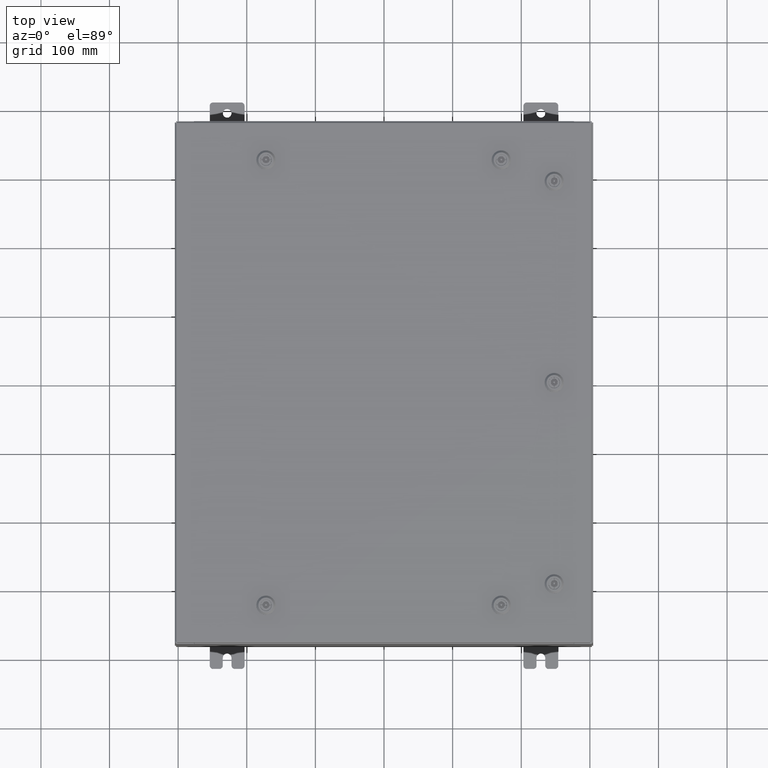
[diagram: clean part render]
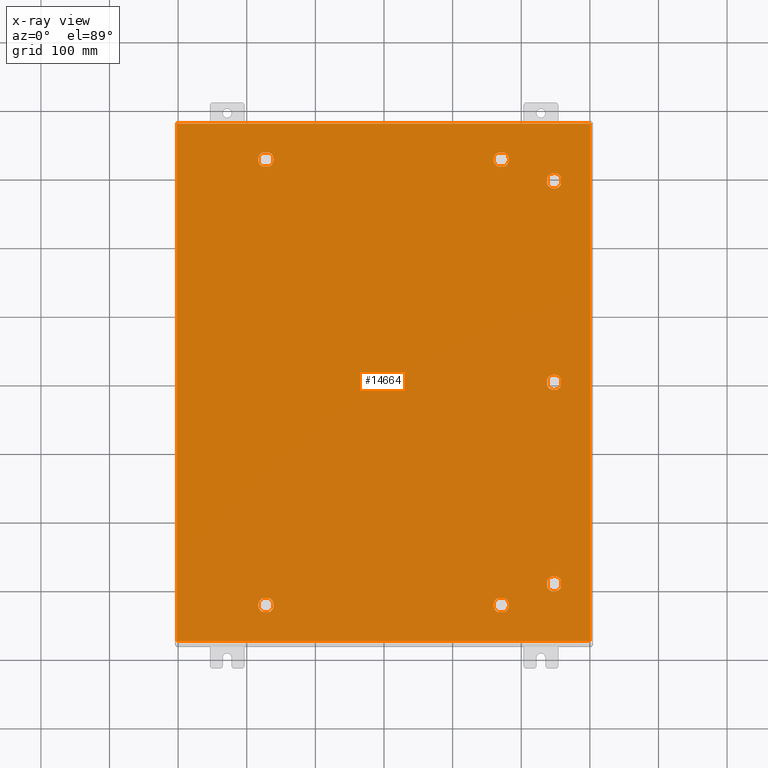
[diagram: x-ray — body ghosted, one internal face saturated and labeled with its STEP entity id]
A machine part, top view, then the same camera in x-ray: the body is ghosted and one INTERNAL B-rep face — a face not visible from any outside direction — is saturated and labeled: STEP entity #14664.
In plain terms, the highlighted planar face has unit normal (0, 0, -1).
Its self-contained STEP definition (entity closure, byte-faithful):
#152 = CIRCLE ( 'NONE', #1400, 0.4424999999999972800 ) ;
#252 = DIRECTION ( 'NONE',  ( -1.000000000000000000, 8.881784197001274000E-016, 0.0000000000000000000 ) ) ;
#368 = DIRECTION ( 'NONE',  ( -1.000000000000000000, 0.0000000000000000000, 0.0000000000000000000 ) ) ;
#466 = DIRECTION ( 'NONE',  ( -1.000000000000000000, 5.478697338139250800E-015, 0.0000000000000000000 ) ) ;
#712 = CARTESIAN_POINT ( 'NONE',  ( 9.392800000000015400, 0.1994523752679053800, -0.07470000000000003000 ) ) ;
#793 = VERTEX_POINT ( 'NONE', #23833 ) ;
#808 = VERTEX_POINT ( 'NONE', #3298 ) ;
#905 = VERTEX_POINT ( 'NONE', #17414 ) ;
#940 = VERTEX_POINT ( 'NONE', #14763 ) ;
#1184 = VECTOR ( 'NONE', #53418, 39.37007874015748100 ) ;
#1240 = EDGE_CURVE ( 'NONE', #21196, #11850, #36324, .T. ) ;
#1400 = AXIS2_PLACEMENT_3D ( 'NONE', #44839, #15274, #49804 ) ;
#1429 = VECTOR ( 'NONE', #466, 39.37007874015748100 ) ;
#1481 = EDGE_CURVE ( 'NONE', #808, #13342, #18571, .T. ) ;
#1514 = EDGE_CURVE ( 'NONE', #21528, #808, #40183, .T. ) ;
#1547 = LINE ( 'NONE', #13909, #41072 ) ;
#1581 = DIRECTION ( 'NONE',  ( -1.000000000000000000, 0.0000000000000000000, 0.0000000000000000000 ) ) ;
#1591 = ORIENTED_EDGE ( 'NONE', *, *, #31052, .T. ) ;
#1689 = DIRECTION ( 'NONE',  ( -1.000000000000000000, 2.664535259100377700E-015, 0.0000000000000000000 ) ) ;
#1739 = EDGE_CURVE ( 'NONE', #26113, #12554, #61850, .T. ) ;
#1940 = CARTESIAN_POINT ( 'NONE',  ( -6.550547624732101500, -12.39280000000000300, -0.07470000000000003000 ) ) ;
#2157 = CIRCLE ( 'NONE', #56658, 0.4424999999999972800 ) ;
#2561 = VERTEX_POINT ( 'NONE', #3694 ) ;
#2570 = CARTESIAN_POINT ( 'NONE',  ( -6.307499999999988600, -12.78779999999999900, -0.07470000000000003000 ) ) ;
#3216 = LINE ( 'NONE', #48623, #54295 ) ;
#3298 = CARTESIAN_POINT ( 'NONE',  ( -11.84980000000000000, 14.84980000000000200, -0.07470000000000000300 ) ) ;
#3370 = EDGE_CURVE ( 'NONE', #12554, #8052, #38243, .T. ) ;
#3447 = LINE ( 'NONE', #27107, #15144 ) ;
#3535 = FACE_BOUND ( 'NONE', #20921, .T. ) ;
#3587 = ORIENTED_EDGE ( 'NONE', *, *, #28927, .T. ) ;
#3694 = CARTESIAN_POINT ( 'NONE',  ( -6.307499999999987700, 12.78779999999999400, -0.07470000000000003000 ) ) ;
#3756 = CARTESIAN_POINT ( 'NONE',  ( 6.550547624732099700, 12.39280000000000100, -0.07470000000000003000 ) ) ;
#3766 = CARTESIAN_POINT ( 'NONE',  ( 10.18280000000000600, 0.1994523752679009100, -0.07470000000000000300 ) ) ;
#3865 = DIRECTION ( 'NONE',  ( -0.0000000000000000000, -0.0000000000000000000, 1.000000000000000000 ) ) ;
#3946 = AXIS2_PLACEMENT_3D ( 'NONE', #59601, #29989, #252 ) ;
#4282 = DIRECTION ( 'NONE',  ( -1.000000000000000000, 0.0000000000000000000, 0.0000000000000000000 ) ) ;
#4862 = EDGE_CURVE ( 'NONE', #25707, #18891, #53598, .T. ) ;
#4920 = AXIS2_PLACEMENT_3D ( 'NONE', #54618, #25041, #59621 ) ;
#5828 = CARTESIAN_POINT ( 'NONE',  ( -6.550547624732093500, 13.18279999999998400, -0.07470000000000003000 ) ) ;
#5858 = VERTEX_POINT ( 'NONE', #50361 ) ;
#5959 = EDGE_CURVE ( 'NONE', #38303, #27074, #10332, .T. ) ;
#6161 = VERTEX_POINT ( 'NONE', #58128 ) ;
#6221 = CARTESIAN_POINT ( 'NONE',  ( -6.949452375267867400, -13.18279999999999500, -0.07470000000000003000 ) ) ;
#6572 = CARTESIAN_POINT ( 'NONE',  ( 6.550547624732094400, -13.18279999999999000, -0.07470000000000003000 ) ) ;
#6668 = FACE_BOUND ( 'NONE', #29191, .T. ) ;
#6966 = EDGE_CURVE ( 'NONE', #15094, #2561, #62909, .T. ) ;
#7006 = ORIENTED_EDGE ( 'NONE', *, *, #49915, .T. ) ;
#7517 = EDGE_CURVE ( 'NONE', #27074, #12629, #50455, .T. ) ;
#7730 = EDGE_CURVE ( 'NONE', #9906, #6161, #3216, .T. ) ;
#7871 = DIRECTION ( 'NONE',  ( -1.000000000000000000, 1.095739467627835200E-014, 0.0000000000000000000 ) ) ;
#8052 = VERTEX_POINT ( 'NONE', #2570 ) ;
#8215 = VECTOR ( 'NONE', #39286, 39.37007874015748100 ) ;
#8402 = LINE ( 'NONE', #28562, #21573 ) ;
#8673 = CIRCLE ( 'NONE', #59344, 0.4424999999999972800 ) ;
#8698 = CIRCLE ( 'NONE', #34859, 0.4424999999999972800 ) ;
#9390 = ORIENTED_EDGE ( 'NONE', *, *, #3370, .T. ) ;
#9679 = CARTESIAN_POINT ( 'NONE',  ( 9.392800000000015400, 11.76195237526790500, -0.07470000000000003000 ) ) ;
#9906 = VERTEX_POINT ( 'NONE', #63256 ) ;
#10175 = ORIENTED_EDGE ( 'NONE', *, *, #1514, .F. ) ;
#10332 = CIRCLE ( 'NONE', #35005, 0.4424999999999972800 ) ;
#10334 = AXIS2_PLACEMENT_3D ( 'NONE', #15165, #49700, #20121 ) ;
#10765 = VECTOR ( 'NONE', #45508, 39.37007874015748100 ) ;
#10828 = ORIENTED_EDGE ( 'NONE', *, *, #48126, .T. ) ;
#10840 = VECTOR ( 'NONE', #55280, 39.37007874015748100 ) ;
#10926 = CARTESIAN_POINT ( 'NONE',  ( 9.787800000000009600, -11.56250000000001600, -0.07470000000000003000 ) ) ;
#11298 = CARTESIAN_POINT ( 'NONE',  ( 9.392800000000011800, -0.1994523752678671600, -0.07470000000000003000 ) ) ;
#11850 = VERTEX_POINT ( 'NONE', #56314 ) ;
#11953 = CIRCLE ( 'NONE', #4920, 0.4424999999999972800 ) ;
#12332 = ORIENTED_EDGE ( 'NONE', *, *, #50882, .T. ) ;
#12428 = LINE ( 'NONE', #712, #10840 ) ;
#12500 = CARTESIAN_POINT ( 'NONE',  ( 10.18280000000000700, -11.36304762473213100, -0.07470000000000003000 ) ) ;
#12554 = VERTEX_POINT ( 'NONE', #45792 ) ;
#12629 = VERTEX_POINT ( 'NONE', #51825 ) ;
#12799 = CARTESIAN_POINT ( 'NONE',  ( -6.550547624732099700, 12.39279999999999800, -0.07470000000000003000 ) ) ;
#13243 = CIRCLE ( 'NONE', #15504, 0.4424999999999972800 ) ;
#13342 = VERTEX_POINT ( 'NONE', #41139 ) ;
#13580 = ORIENTED_EDGE ( 'NONE', *, *, #19854, .T. ) ;
#13909 = CARTESIAN_POINT ( 'NONE',  ( -11.84980000000000000, -14.84979999999999500, -0.07470000000000019700 ) ) ;
#14378 = EDGE_CURVE ( 'NONE', #51377, #21528, #27632, .T. ) ;
#14507 = ORIENTED_EDGE ( 'NONE', *, *, #51423, .T. ) ;
#14664 = ADVANCED_FACE ( 'NONE', ( #6668, #3535, #29906, #56186, #54621, #16789, #41475, #28347 ), #45396, .T. ) ;
#14729 = CIRCLE ( 'NONE', #38749, 0.4424999999999972800 ) ;
#14763 = CARTESIAN_POINT ( 'NONE',  ( 9.392800000000015400, 11.76195237526790500, -0.07470000000000003000 ) ) ;
#15094 = VERTEX_POINT ( 'NONE', #18522 ) ;
#15144 = VECTOR ( 'NONE', #32076, 39.37007874015748100 ) ;
#15165 = CARTESIAN_POINT ( 'NONE',  ( 6.749999999999985800, -12.78779999999999700, -0.07470000000000003000 ) ) ;
#15196 = DIRECTION ( 'NONE',  ( 0.0000000000000000000, -1.000000000000000000, 0.0000000000000000000 ) ) ;
#15274 = DIRECTION ( 'NONE',  ( -0.0000000000000000000, -0.0000000000000000000, 1.000000000000000000 ) ) ;
#15321 = EDGE_CURVE ( 'NONE', #46886, #25073, #39134, .T. ) ;
#15431 = CARTESIAN_POINT ( 'NONE',  ( -6.749999999999984900, 12.78779999999999400, -0.07470000000000003000 ) ) ;
#15502 = DIRECTION ( 'NONE',  ( -0.0000000000000000000, -0.0000000000000000000, 1.000000000000000000 ) ) ;
#15504 = AXIS2_PLACEMENT_3D ( 'NONE', #63592, #33960, #4282 ) ;
#15547 = DIRECTION ( 'NONE',  ( -1.000000000000000000, 0.0000000000000000000, 0.0000000000000000000 ) ) ;
#15842 = DIRECTION ( 'NONE',  ( 0.0000000000000000000, 0.0000000000000000000, -1.000000000000000000 ) ) ;
#15962 = DIRECTION ( 'NONE',  ( -1.000000000000000000, 0.0000000000000000000, 0.0000000000000000000 ) ) ;
#16114 = EDGE_CURVE ( 'NONE', #793, #15094, #17492, .T. ) ;
#16392 = DIRECTION ( 'NONE',  ( -0.0000000000000000000, -0.0000000000000000000, 1.000000000000000000 ) ) ;
#16440 = VERTEX_POINT ( 'NONE', #29747 ) ;
#16605 = CARTESIAN_POINT ( 'NONE',  ( 6.550547624732094400, -13.18279999999999000, -0.07470000000000003000 ) ) ;
#16789 = FACE_BOUND ( 'NONE', #52524, .T. ) ;
#17035 = VECTOR ( 'NONE', #15196, 39.37007874015748100 ) ;
#17269 = ORIENTED_EDGE ( 'NONE', *, *, #35716, .T. ) ;
#17414 = CARTESIAN_POINT ( 'NONE',  ( 9.392800000000011800, 11.36304762473213300, -0.07470000000000003000 ) ) ;
#17492 = LINE ( 'NONE', #12799, #30588 ) ;
#17810 = AXIS2_PLACEMENT_3D ( 'NONE', #26368, #60953, #31344 ) ;
#18009 = EDGE_LOOP ( 'NONE', ( #55494, #51765, #9390, #35010, #27367 ) ) ;
#18522 = CARTESIAN_POINT ( 'NONE',  ( -6.550547624732099700, 12.39279999999999800, -0.07470000000000000300 ) ) ;
#18571 = LINE ( 'NONE', #39814, #17035 ) ;
#18839 = VERTEX_POINT ( 'NONE', #30590 ) ;
#18891 = VERTEX_POINT ( 'NONE', #50663 ) ;
#19592 = DIRECTION ( 'NONE',  ( -5.478697338139220100E-015, 1.000000000000000000, 0.0000000000000000000 ) ) ;
#19854 = EDGE_CURVE ( 'NONE', #25073, #940, #152, .T. ) ;
#20121 = DIRECTION ( 'NONE',  ( -1.000000000000000000, 0.0000000000000000000, 0.0000000000000000000 ) ) ;
#20267 = ORIENTED_EDGE ( 'NONE', *, *, #15321, .T. ) ;
#20684 = EDGE_CURVE ( 'NONE', #905, #46886, #42767, .T. ) ;
#20921 = EDGE_LOOP ( 'NONE', ( #30857, #20267, #13580, #3587 ) ) ;
#21196 = VERTEX_POINT ( 'NONE', #1940 ) ;
#21528 = VERTEX_POINT ( 'NONE', #24048 ) ;
#21573 = VECTOR ( 'NONE', #43472, 39.37007874015748100 ) ;
#22065 = VERTEX_POINT ( 'NONE', #3756 ) ;
#22754 = CARTESIAN_POINT ( 'NONE',  ( 6.550547624732101500, -12.39280000000000100, -0.07470000000000000300 ) ) ;
#22801 = EDGE_CURVE ( 'NONE', #5858, #45959, #62759, .T. ) ;
#22823 = EDGE_LOOP ( 'NONE', ( #49147, #54723, #35754, #44570 ) ) ;
#23048 = CARTESIAN_POINT ( 'NONE',  ( 10.18280000000000600, -11.76195237526789900, -0.07470000000000003000 ) ) ;
#23833 = CARTESIAN_POINT ( 'NONE',  ( -6.949452375267869200, 12.39279999999999800, -0.07470000000000003000 ) ) ;
#24048 = CARTESIAN_POINT ( 'NONE',  ( 11.84980000000000000, 14.84980000000000200, -0.07470000000000000300 ) ) ;
#25041 = DIRECTION ( 'NONE',  ( -0.0000000000000000000, -0.0000000000000000000, 1.000000000000000000 ) ) ;
#25073 = VERTEX_POINT ( 'NONE', #53033 ) ;
#25164 = CIRCLE ( 'NONE', #36407, 0.4424999999999983400 ) ;
#25539 = CARTESIAN_POINT ( 'NONE',  ( 0.0000000000000000000, 0.0000000000000000000, -0.07470000000000000300 ) ) ;
#25569 = VERTEX_POINT ( 'NONE', #60580 ) ;
#25707 = VERTEX_POINT ( 'NONE', #33552 ) ;
#25708 = EDGE_CURVE ( 'NONE', #34355, #18839, #8402, .T. ) ;
#25995 = VECTOR ( 'NONE', #19592, 39.37007874015748100 ) ;
#26113 = VERTEX_POINT ( 'NONE', #6221 ) ;
#26152 = CIRCLE ( 'NONE', #62858, 0.4424999999999983400 ) ;
#26368 = CARTESIAN_POINT ( 'NONE',  ( 6.749999999999984900, 12.78779999999999700, -0.07470000000000003000 ) ) ;
#26666 = DIRECTION ( 'NONE',  ( -0.0000000000000000000, -0.0000000000000000000, 1.000000000000000000 ) ) ;
#26830 = LINE ( 'NONE', #60190, #38407 ) ;
#26853 = EDGE_CURVE ( 'NONE', #60501, #31681, #46236, .T. ) ;
#26946 = EDGE_CURVE ( 'NONE', #18839, #5858, #54710, .T. ) ;
#27058 = VECTOR ( 'NONE', #56987, 39.37007874015748100 ) ;
#27074 = VERTEX_POINT ( 'NONE', #16605 ) ;
#27107 = CARTESIAN_POINT ( 'NONE',  ( 6.550547624732099700, 12.39280000000000100, -0.07470000000000003000 ) ) ;
#27119 = ORIENTED_EDGE ( 'NONE', *, *, #6966, .T. ) ;
#27230 = AXIS2_PLACEMENT_3D ( 'NONE', #10926, #45517, #15962 ) ;
#27367 = ORIENTED_EDGE ( 'NONE', *, *, #1240, .T. ) ;
#27632 = LINE ( 'NONE', #43500, #1184 ) ;
#28065 = ORIENTED_EDGE ( 'NONE', *, *, #62372, .T. ) ;
#28123 = ORIENTED_EDGE ( 'NONE', *, *, #63670, .T. ) ;
#28161 = DIRECTION ( 'NONE',  ( -0.0000000000000000000, -0.0000000000000000000, 1.000000000000000000 ) ) ;
#28239 = CARTESIAN_POINT ( 'NONE',  ( 6.749999999999984900, 12.78779999999999700, -0.07470000000000003000 ) ) ;
#28347 = FACE_OUTER_BOUND ( 'NONE', #36558, .T. ) ;
#28562 = CARTESIAN_POINT ( 'NONE',  ( 9.392800000000017100, -11.76195237526790500, -0.07470000000000003000 ) ) ;
#28896 = VECTOR ( 'NONE', #7871, 39.37007874015748100 ) ;
#28927 = EDGE_CURVE ( 'NONE', #940, #905, #54597, .T. ) ;
#29191 = EDGE_LOOP ( 'NONE', ( #10828, #40132, #48301, #41114 ) ) ;
#29747 = CARTESIAN_POINT ( 'NONE',  ( 6.949452375267869200, 12.39280000000000100, -0.07470000000000003000 ) ) ;
#29906 = FACE_BOUND ( 'NONE', #22823, .T. ) ;
#29989 = DIRECTION ( 'NONE',  ( -0.0000000000000000000, -0.0000000000000000000, 1.000000000000000000 ) ) ;
#30099 = DIRECTION ( 'NONE',  ( -0.0000000000000000000, -0.0000000000000000000, 1.000000000000000000 ) ) ;
#30404 = ORIENTED_EDGE ( 'NONE', *, *, #4862, .T. ) ;
#30588 = VECTOR ( 'NONE', #42388, 39.37007874015748100 ) ;
#30590 = CARTESIAN_POINT ( 'NONE',  ( 9.392800000000017100, -11.76195237526790500, -0.07470000000000000300 ) ) ;
#30857 = ORIENTED_EDGE ( 'NONE', *, *, #20684, .T. ) ;
#31052 = EDGE_CURVE ( 'NONE', #46310, #46007, #57650, .T. ) ;
#31316 = DIRECTION ( 'NONE',  ( -0.0000000000000000000, -0.0000000000000000000, 1.000000000000000000 ) ) ;
#31344 = DIRECTION ( 'NONE',  ( -1.000000000000000000, 0.0000000000000000000, 0.0000000000000000000 ) ) ;
#31421 = DIRECTION ( 'NONE',  ( -0.0000000000000000000, -0.0000000000000000000, 1.000000000000000000 ) ) ;
#31681 = VERTEX_POINT ( 'NONE', #33685 ) ;
#32076 = DIRECTION ( 'NONE',  ( 1.000000000000000000, 0.0000000000000000000, 0.0000000000000000000 ) ) ;
#32249 = CIRCLE ( 'NONE', #44641, 0.4424999999999972800 ) ;
#32369 = CARTESIAN_POINT ( 'NONE',  ( 10.18280000000000600, 11.36304762473213100, -0.07470000000000003000 ) ) ;
#33225 = DIRECTION ( 'NONE',  ( -1.000000000000000000, 0.0000000000000000000, 0.0000000000000000000 ) ) ;
#33368 = CARTESIAN_POINT ( 'NONE',  ( 6.550547624732101500, -12.39280000000000100, -0.07470000000000003000 ) ) ;
#33552 = CARTESIAN_POINT ( 'NONE',  ( -6.550547624732093500, 13.18279999999998400, -0.07470000000000003000 ) ) ;
#33565 = CARTESIAN_POINT ( 'NONE',  ( 6.749999999999984900, 12.78779999999999700, -0.07470000000000003000 ) ) ;
#33685 = CARTESIAN_POINT ( 'NONE',  ( 10.18280000000000600, -0.1994523752678676000, -0.07470000000000003000 ) ) ;
#33780 = CARTESIAN_POINT ( 'NONE',  ( -6.550547624732101500, -12.39280000000000300, -0.07470000000000003000 ) ) ;
#33959 = EDGE_CURVE ( 'NONE', #18891, #793, #8698, .T. ) ;
#33960 = DIRECTION ( 'NONE',  ( -0.0000000000000000000, -0.0000000000000000000, 1.000000000000000000 ) ) ;
#34074 = CARTESIAN_POINT ( 'NONE',  ( 7.192499999999983000, -12.78779999999999700, -0.07470000000000003000 ) ) ;
#34349 = ORIENTED_EDGE ( 'NONE', *, *, #7517, .T. ) ;
#34355 = VERTEX_POINT ( 'NONE', #59043 ) ;
#34435 = AXIS2_PLACEMENT_3D ( 'NONE', #25539, #15842, #50360 ) ;
#34859 = AXIS2_PLACEMENT_3D ( 'NONE', #56251, #26666, #61248 ) ;
#35005 = AXIS2_PLACEMENT_3D ( 'NONE', #51514, #44552, #50283 ) ;
#35010 = ORIENTED_EDGE ( 'NONE', *, *, #52540, .T. ) ;
#35716 = EDGE_CURVE ( 'NONE', #2561, #25707, #13243, .T. ) ;
#35754 = ORIENTED_EDGE ( 'NONE', *, *, #55589, .T. ) ;
#36123 = VERTEX_POINT ( 'NONE', #36494 ) ;
#36324 = LINE ( 'NONE', #33780, #1429 ) ;
#36342 = VECTOR ( 'NONE', #62994, 39.37007874015748100 ) ;
#36407 = AXIS2_PLACEMENT_3D ( 'NONE', #57779, #28161, #62755 ) ;
#36432 = VECTOR ( 'NONE', #47660, 39.37007874015748100 ) ;
#36494 = CARTESIAN_POINT ( 'NONE',  ( 7.192499999999982100, 12.78779999999999700, -0.07470000000000003000 ) ) ;
#36558 = EDGE_LOOP ( 'NONE', ( #54433, #44699, #46525, #10175 ) ) ;
#37492 = DIRECTION ( 'NONE',  ( -1.000000000000000000, -1.095739467627835200E-014, 0.0000000000000000000 ) ) ;
#38243 = CIRCLE ( 'NONE', #53230, 0.4424999999999972800 ) ;
#38303 = VERTEX_POINT ( 'NONE', #22754 ) ;
#38407 = VECTOR ( 'NONE', #49878, 39.37007874015748100 ) ;
#38514 = DIRECTION ( 'NONE',  ( -1.000000000000000000, 0.0000000000000000000, 0.0000000000000000000 ) ) ;
#38749 = AXIS2_PLACEMENT_3D ( 'NONE', #33565, #3865, #38514 ) ;
#38816 = CARTESIAN_POINT ( 'NONE',  ( -6.550547624732094400, -13.18279999999999100, -0.07470000000000003000 ) ) ;
#38963 = CARTESIAN_POINT ( 'NONE',  ( -6.749999999999985800, -12.78779999999999900, -0.07470000000000003000 ) ) ;
#39134 = LINE ( 'NONE', #49156, #25995 ) ;
#39286 = DIRECTION ( 'NONE',  ( -8.218046007208784700E-015, -1.000000000000000000, 0.0000000000000000000 ) ) ;
#39524 = DIRECTION ( 'NONE',  ( -0.0000000000000000000, -0.0000000000000000000, 1.000000000000000000 ) ) ;
#39814 = CARTESIAN_POINT ( 'NONE',  ( -11.84980000000000000, 14.84980000000000000, -0.07470000000000019700 ) ) ;
#40132 = ORIENTED_EDGE ( 'NONE', *, *, #25708, .T. ) ;
#40183 = LINE ( 'NONE', #49096, #27058 ) ;
#41072 = VECTOR ( 'NONE', #43277, 39.37007874015748100 ) ;
#41090 = EDGE_CURVE ( 'NONE', #31681, #48995, #26830, .T. ) ;
#41114 = ORIENTED_EDGE ( 'NONE', *, *, #22801, .T. ) ;
#41139 = CARTESIAN_POINT ( 'NONE',  ( -11.84980000000000000, -14.84979999999999500, -0.07470000000000000300 ) ) ;
#41475 = FACE_BOUND ( 'NONE', #44030, .T. ) ;
#42388 = DIRECTION ( 'NONE',  ( 1.000000000000000000, 0.0000000000000000000, 0.0000000000000000000 ) ) ;
#42767 = CIRCLE ( 'NONE', #59936, 0.4424999999999983400 ) ;
#43277 = DIRECTION ( 'NONE',  ( 1.000000000000000000, -0.0000000000000000000, -0.0000000000000000000 ) ) ;
#43472 = DIRECTION ( 'NONE',  ( 8.218046007208784700E-015, -1.000000000000000000, 0.0000000000000000000 ) ) ;
#43500 = CARTESIAN_POINT ( 'NONE',  ( 11.84980000000000000, -14.84979999999999300, -0.07470000000000019700 ) ) ;
#44030 = EDGE_LOOP ( 'NONE', ( #47550, #44491, #27119, #17269, #30404 ) ) ;
#44491 = ORIENTED_EDGE ( 'NONE', *, *, #16114, .T. ) ;
#44552 = DIRECTION ( 'NONE',  ( -0.0000000000000000000, -0.0000000000000000000, 1.000000000000000000 ) ) ;
#44570 = ORIENTED_EDGE ( 'NONE', *, *, #61985, .T. ) ;
#44634 = DIRECTION ( 'NONE',  ( -1.000000000000000000, 0.0000000000000000000, 0.0000000000000000000 ) ) ;
#44641 = AXIS2_PLACEMENT_3D ( 'NONE', #59712, #30099, #368 ) ;
#44699 = ORIENTED_EDGE ( 'NONE', *, *, #56320, .F. ) ;
#44839 = CARTESIAN_POINT ( 'NONE',  ( 9.787800000000007800, 11.56250000000001600, -0.07470000000000003000 ) ) ;
#45310 = CIRCLE ( 'NONE', #17810, 0.4424999999999972800 ) ;
#45396 = PLANE ( 'NONE',  #34435 ) ;
#45508 = DIRECTION ( 'NONE',  ( 1.000000000000000000, 1.095739467627835200E-014, 0.0000000000000000000 ) ) ;
#45517 = DIRECTION ( 'NONE',  ( -0.0000000000000000000, -0.0000000000000000000, 1.000000000000000000 ) ) ;
#45792 = CARTESIAN_POINT ( 'NONE',  ( -6.550547624732094400, -13.18279999999999100, -0.07470000000000000300 ) ) ;
#45810 = AXIS2_PLACEMENT_3D ( 'NONE', #15431, #15502, #15547 ) ;
#45959 = VERTEX_POINT ( 'NONE', #12500 ) ;
#45965 = CARTESIAN_POINT ( 'NONE',  ( 9.787800000000009600, -11.56250000000001600, -0.07470000000000003000 ) ) ;
#46007 = VERTEX_POINT ( 'NONE', #47277 ) ;
#46088 = DIRECTION ( 'NONE',  ( 1.000000000000000000, -1.095739467627835200E-014, 0.0000000000000000000 ) ) ;
#46236 = CIRCLE ( 'NONE', #3946, 0.4424999999999972800 ) ;
#46310 = VERTEX_POINT ( 'NONE', #34074 ) ;
#46525 = ORIENTED_EDGE ( 'NONE', *, *, #1481, .F. ) ;
#46886 = VERTEX_POINT ( 'NONE', #32369 ) ;
#47277 = CARTESIAN_POINT ( 'NONE',  ( 6.949452375267869200, -12.39280000000000100, -0.07470000000000003000 ) ) ;
#47369 = VECTOR ( 'NONE', #46088, 39.37007874015748100 ) ;
#47550 = ORIENTED_EDGE ( 'NONE', *, *, #33959, .T. ) ;
#47660 = DIRECTION ( 'NONE',  ( 5.478697338139220100E-015, 1.000000000000000000, 0.0000000000000000000 ) ) ;
#48126 = EDGE_CURVE ( 'NONE', #45959, #34355, #26152, .T. ) ;
#48301 = ORIENTED_EDGE ( 'NONE', *, *, #26946, .T. ) ;
#48623 = CARTESIAN_POINT ( 'NONE',  ( 6.550547624732093500, 13.18279999999999000, -0.07470000000000003000 ) ) ;
#48995 = VERTEX_POINT ( 'NONE', #3766 ) ;
#49096 = CARTESIAN_POINT ( 'NONE',  ( 11.84980000000000000, 14.84980000000000200, -0.07469999999999910000 ) ) ;
#49147 = ORIENTED_EDGE ( 'NONE', *, *, #26853, .T. ) ;
#49156 = CARTESIAN_POINT ( 'NONE',  ( 10.18280000000000200, 11.76195237526789900, -0.07470000000000003000 ) ) ;
#49700 = DIRECTION ( 'NONE',  ( -0.0000000000000000000, -0.0000000000000000000, 1.000000000000000000 ) ) ;
#49804 = DIRECTION ( 'NONE',  ( -1.000000000000000000, 0.0000000000000000000, 0.0000000000000000000 ) ) ;
#49878 = DIRECTION ( 'NONE',  ( -5.478697338139235800E-015, 1.000000000000000000, 0.0000000000000000000 ) ) ;
#49915 = EDGE_CURVE ( 'NONE', #12629, #46310, #32249, .T. ) ;
#50021 = ORIENTED_EDGE ( 'NONE', *, *, #5959, .T. ) ;
#50283 = DIRECTION ( 'NONE',  ( -1.000000000000000000, 0.0000000000000000000, 0.0000000000000000000 ) ) ;
#50360 = DIRECTION ( 'NONE',  ( -1.000000000000000000, 0.0000000000000000000, -0.0000000000000000000 ) ) ;
#50361 = CARTESIAN_POINT ( 'NONE',  ( 10.18280000000000600, -11.76195237526789900, -0.07470000000000003000 ) ) ;
#50455 = LINE ( 'NONE', #6572, #47369 ) ;
#50663 = CARTESIAN_POINT ( 'NONE',  ( -6.949452375267865600, 13.18279999999999000, -0.07470000000000003000 ) ) ;
#50882 = EDGE_CURVE ( 'NONE', #6161, #22065, #45310, .T. ) ;
#50914 = DIRECTION ( 'NONE',  ( -1.000000000000000000, 0.0000000000000000000, 0.0000000000000000000 ) ) ;
#51377 = VERTEX_POINT ( 'NONE', #60611 ) ;
#51423 = EDGE_CURVE ( 'NONE', #22065, #16440, #3447, .T. ) ;
#51514 = CARTESIAN_POINT ( 'NONE',  ( 6.749999999999985800, -12.78779999999999700, -0.07470000000000003000 ) ) ;
#51536 = EDGE_CURVE ( 'NONE', #11850, #26113, #25164, .T. ) ;
#51765 = ORIENTED_EDGE ( 'NONE', *, *, #1739, .T. ) ;
#51825 = CARTESIAN_POINT ( 'NONE',  ( 6.949452375267867400, -13.18279999999999300, -0.07470000000000003000 ) ) ;
#52524 = EDGE_LOOP ( 'NONE', ( #60510, #28123, #53016, #12332, #14507 ) ) ;
#52540 = EDGE_CURVE ( 'NONE', #8052, #21196, #11953, .T. ) ;
#53016 = ORIENTED_EDGE ( 'NONE', *, *, #7730, .T. ) ;
#53033 = CARTESIAN_POINT ( 'NONE',  ( 10.18280000000000200, 11.76195237526789900, -0.07470000000000000300 ) ) ;
#53230 = AXIS2_PLACEMENT_3D ( 'NONE', #38963, #39524, #44634 ) ;
#53418 = DIRECTION ( 'NONE',  ( 0.0000000000000000000, 1.000000000000000000, 0.0000000000000000000 ) ) ;
#53598 = LINE ( 'NONE', #5828, #28896 ) ;
#54295 = VECTOR ( 'NONE', #37492, 39.37007874015748100 ) ;
#54433 = ORIENTED_EDGE ( 'NONE', *, *, #14378, .F. ) ;
#54597 = LINE ( 'NONE', #9679, #8215 ) ;
#54618 = CARTESIAN_POINT ( 'NONE',  ( -6.749999999999985800, -12.78779999999999900, -0.07470000000000003000 ) ) ;
#54621 = FACE_BOUND ( 'NONE', #18009, .T. ) ;
#54710 = CIRCLE ( 'NONE', #27230, 0.4424999999999972800 ) ;
#54723 = ORIENTED_EDGE ( 'NONE', *, *, #41090, .T. ) ;
#55280 = DIRECTION ( 'NONE',  ( -8.218046007208770500E-015, -1.000000000000000000, 0.0000000000000000000 ) ) ;
#55494 = ORIENTED_EDGE ( 'NONE', *, *, #51536, .T. ) ;
#55589 = EDGE_CURVE ( 'NONE', #48995, #25569, #8673, .T. ) ;
#56186 = FACE_BOUND ( 'NONE', #62636, .T. ) ;
#56251 = CARTESIAN_POINT ( 'NONE',  ( -6.749999999999984900, 12.78779999999999400, -0.07470000000000003000 ) ) ;
#56314 = CARTESIAN_POINT ( 'NONE',  ( -6.949452375267869200, -12.39280000000000100, -0.07470000000000003000 ) ) ;
#56320 = EDGE_CURVE ( 'NONE', #13342, #51377, #1547, .T. ) ;
#56658 = AXIS2_PLACEMENT_3D ( 'NONE', #28239, #62831, #33225 ) ;
#56987 = DIRECTION ( 'NONE',  ( -1.000000000000000000, -0.0000000000000000000, -0.0000000000000000000 ) ) ;
#57650 = CIRCLE ( 'NONE', #10334, 0.4424999999999972800 ) ;
#57779 = CARTESIAN_POINT ( 'NONE',  ( -6.749999999999985800, -12.78779999999999900, -0.07470000000000003000 ) ) ;
#58128 = CARTESIAN_POINT ( 'NONE',  ( 6.550547624732093500, 13.18279999999999000, -0.07470000000000000300 ) ) ;
#59043 = CARTESIAN_POINT ( 'NONE',  ( 9.392800000000013600, -11.36304762473213300, -0.07470000000000003000 ) ) ;
#59344 = AXIS2_PLACEMENT_3D ( 'NONE', #61036, #31421, #1689 ) ;
#59601 = CARTESIAN_POINT ( 'NONE',  ( 9.787800000000007800, 1.529834876451990400E-014, -0.07470000000000003000 ) ) ;
#59621 = DIRECTION ( 'NONE',  ( -1.000000000000000000, 0.0000000000000000000, 0.0000000000000000000 ) ) ;
#59712 = CARTESIAN_POINT ( 'NONE',  ( 6.749999999999985800, -12.78779999999999700, -0.07470000000000003000 ) ) ;
#59936 = AXIS2_PLACEMENT_3D ( 'NONE', #60929, #31316, #1581 ) ;
#60190 = CARTESIAN_POINT ( 'NONE',  ( 10.18280000000000200, 0.1994523752679009100, -0.07470000000000003000 ) ) ;
#60501 = VERTEX_POINT ( 'NONE', #11298 ) ;
#60510 = ORIENTED_EDGE ( 'NONE', *, *, #60853, .T. ) ;
#60580 = CARTESIAN_POINT ( 'NONE',  ( 9.392800000000015400, 0.1994523752679053200, -0.07470000000000003000 ) ) ;
#60611 = CARTESIAN_POINT ( 'NONE',  ( 11.84980000000000000, -14.84979999999999500, -0.07470000000000000300 ) ) ;
#60853 = EDGE_CURVE ( 'NONE', #16440, #36123, #14729, .T. ) ;
#60929 = CARTESIAN_POINT ( 'NONE',  ( 9.787800000000007800, 11.56250000000001600, -0.07470000000000003000 ) ) ;
#60953 = DIRECTION ( 'NONE',  ( -0.0000000000000000000, -0.0000000000000000000, 1.000000000000000000 ) ) ;
#61036 = CARTESIAN_POINT ( 'NONE',  ( 9.787800000000007800, 1.529834876451990400E-014, -0.07470000000000003000 ) ) ;
#61248 = DIRECTION ( 'NONE',  ( -1.000000000000000000, 0.0000000000000000000, 0.0000000000000000000 ) ) ;
#61850 = LINE ( 'NONE', #38816, #10765 ) ;
#61985 = EDGE_CURVE ( 'NONE', #25569, #60501, #12428, .T. ) ;
#62372 = EDGE_CURVE ( 'NONE', #46007, #38303, #64239, .T. ) ;
#62636 = EDGE_LOOP ( 'NONE', ( #7006, #1591, #28065, #50021, #34349 ) ) ;
#62755 = DIRECTION ( 'NONE',  ( -1.000000000000000000, -4.938934225833714700E-015, 0.0000000000000000000 ) ) ;
#62759 = LINE ( 'NONE', #23048, #36432 ) ;
#62831 = DIRECTION ( 'NONE',  ( -0.0000000000000000000, -0.0000000000000000000, 1.000000000000000000 ) ) ;
#62858 = AXIS2_PLACEMENT_3D ( 'NONE', #45965, #16392, #50914 ) ;
#62909 = CIRCLE ( 'NONE', #45810, 0.4424999999999972800 ) ;
#62994 = DIRECTION ( 'NONE',  ( -1.000000000000000000, 0.0000000000000000000, 0.0000000000000000000 ) ) ;
#63256 = CARTESIAN_POINT ( 'NONE',  ( 6.949452375267865600, 13.18279999999999300, -0.07470000000000003000 ) ) ;
#63592 = CARTESIAN_POINT ( 'NONE',  ( -6.749999999999984900, 12.78779999999999400, -0.07470000000000003000 ) ) ;
#63670 = EDGE_CURVE ( 'NONE', #36123, #9906, #2157, .T. ) ;
#64239 = LINE ( 'NONE', #33368, #36342 ) ;